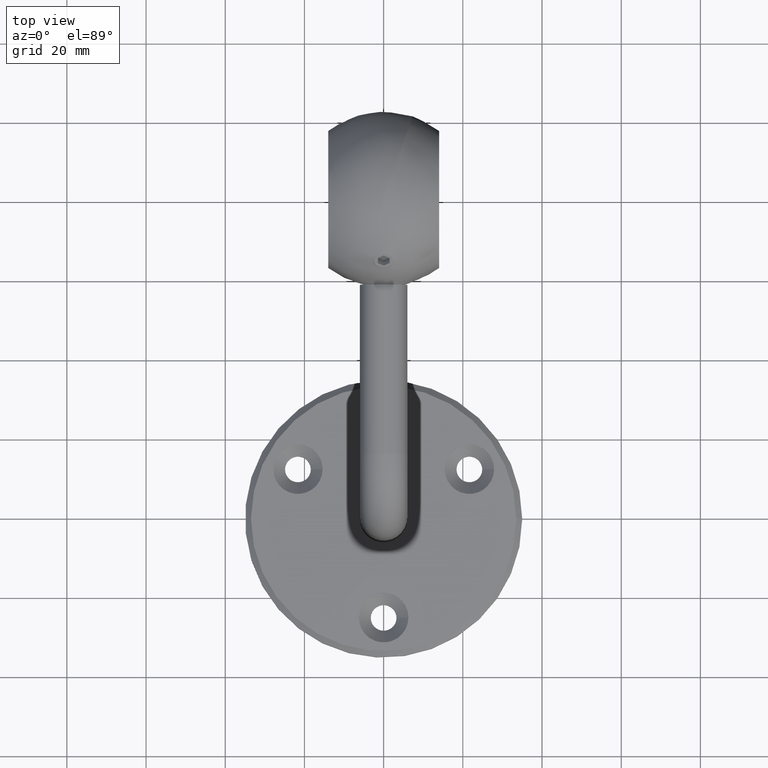
[diagram: clean part render]
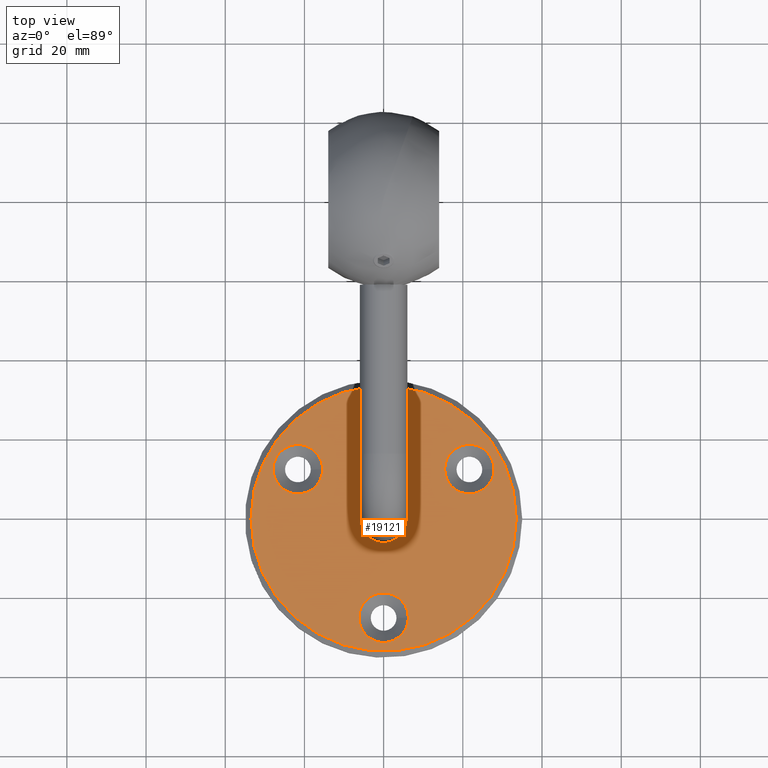
[diagram: same view with one face highlighted and labeled with its STEP entity id]
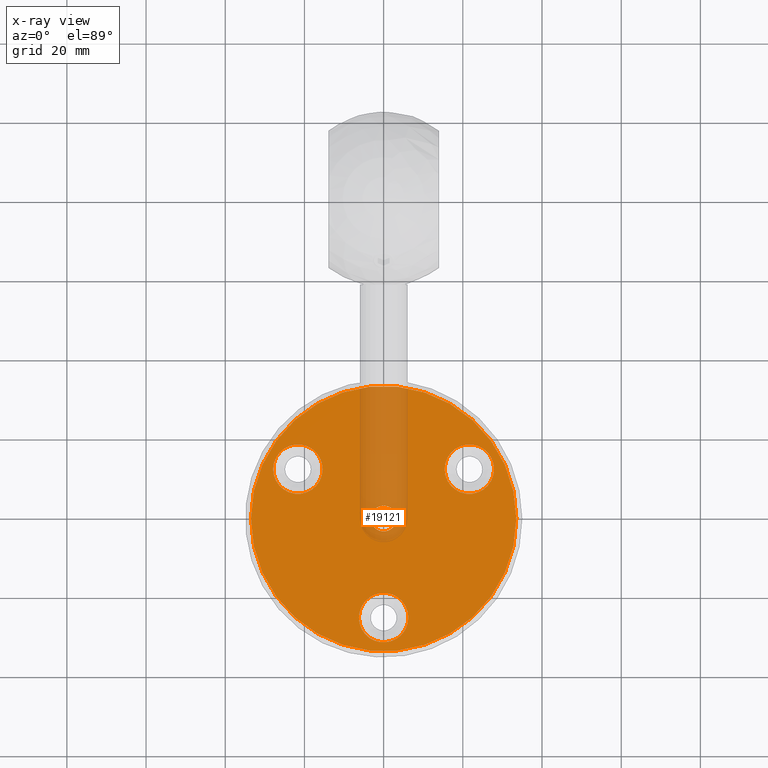
[diagram: x-ray of the same camera — body ghosted, the highlighted face saturated]
A machine part, top view. The second image highlights one B-rep face of the part: STEP entity #19121.
The next image is the same camera in x-ray: the body ghosted, the highlighted face saturated — about 13% of this face is hidden behind the body in this view.
In plain terms, the highlighted planar face has unit normal (0, 0, 1).
Its self-contained STEP definition (entity closure, byte-faithful):
#410 = EDGE_LOOP ( 'NONE', ( #28565 ) ) ;
#695 = EDGE_LOOP ( 'NONE', ( #10227 ) ) ;
#1420 = CIRCLE ( 'NONE', #21896, 33.50000000000002842 ) ;
#1687 = FACE_BOUND ( 'NONE', #21191, .T. ) ;
#2398 = VERTEX_POINT ( 'NONE', #18887 ) ;
#2486 = CARTESIAN_POINT ( 'NONE',  ( 6.249999999999998224, -25.00000000000000000, 6.000000000000001776 ) ) ;
#3160 = ORIENTED_EDGE ( 'NONE', *, *, #9644, .F. ) ;
#3481 = DIRECTION ( 'NONE',  ( 1.000000000000000000, 0.000000000000000000, -0.000000000000000000 ) ) ;
#4149 = CARTESIAN_POINT ( 'NONE',  ( 0.000000000000000000, 0.000000000000000000, 6.000000000000000000 ) ) ;
#4168 = ORIENTED_EDGE ( 'NONE', *, *, #11734, .F. ) ;
#4926 = DIRECTION ( 'NONE',  ( 1.000000000000000000, 0.000000000000000000, 0.000000000000000000 ) ) ;
#5719 = AXIS2_PLACEMENT_3D ( 'NONE', #6544, #22218, #17706 ) ;
#5932 = AXIS2_PLACEMENT_3D ( 'NONE', #26878, #13486, #18315 ) ;
#6018 = DIRECTION ( 'NONE',  ( 0.000000000000000000, 0.000000000000000000, 1.000000000000000000 ) ) ;
#6451 = CARTESIAN_POINT ( 'NONE',  ( 33.50000000000002842, 0.000000000000000000, 6.000000000000000000 ) ) ;
#6544 = CARTESIAN_POINT ( 'NONE',  ( 0.000000000000000000, 0.000000000000000000, 6.000000000000000000 ) ) ;
#6872 = DIRECTION ( 'NONE',  ( -0.000000000000000000, -0.000000000000000000, 1.000000000000000000 ) ) ;
#7276 = EDGE_LOOP ( 'NONE', ( #3160 ) ) ;
#7746 = DIRECTION ( 'NONE',  ( 0.000000000000000000, 0.000000000000000000, 1.000000000000000000 ) ) ;
#9644 = EDGE_CURVE ( 'NONE', #28316, #28316, #25003, .T. ) ;
#9960 = DIRECTION ( 'NONE',  ( 1.000000000000000000, 0.000000000000000000, 0.000000000000000000 ) ) ;
#10227 = ORIENTED_EDGE ( 'NONE', *, *, #15444, .T. ) ;
#10667 = AXIS2_PLACEMENT_3D ( 'NONE', #21012, #7746, #3481 ) ;
#11734 = EDGE_CURVE ( 'NONE', #28651, #28651, #15368, .T. ) ;
#12029 = FACE_BOUND ( 'NONE', #26059, .T. ) ;
#12106 = CARTESIAN_POINT ( 'NONE',  ( -15.40063509461091584, 12.50000000000010303, 6.000000000000001776 ) ) ;
#13486 = DIRECTION ( 'NONE',  ( -0.000000000000000000, -0.000000000000000000, 1.000000000000000000 ) ) ;
#13950 = CARTESIAN_POINT ( 'NONE',  ( -21.65063509461091584, 12.50000000000010303, 6.000000000000001776 ) ) ;
#14221 = CARTESIAN_POINT ( 'NONE',  ( 21.65063509461108282, 12.49999999999979927, 6.000000000000001776 ) ) ;
#15212 = DIRECTION ( 'NONE',  ( 1.000000000000000000, 0.000000000000000000, 0.000000000000000000 ) ) ;
#15368 = CIRCLE ( 'NONE', #5932, 6.249999999999998224 ) ;
#15444 = EDGE_CURVE ( 'NONE', #25855, #25855, #1420, .T. ) ;
#15511 = FACE_BOUND ( 'NONE', #410, .T. ) ;
#16353 = DIRECTION ( 'NONE',  ( -0.000000000000000000, -0.000000000000000000, 1.000000000000000000 ) ) ;
#16764 = PLANE ( 'NONE',  #10667 ) ;
#17468 = ORIENTED_EDGE ( 'NONE', *, *, #25834, .F. ) ;
#17706 = DIRECTION ( 'NONE',  ( 1.000000000000000000, 0.000000000000000000, 0.000000000000000000 ) ) ;
#18136 = CARTESIAN_POINT ( 'NONE',  ( 3.250000000000004441, 0.000000000000000000, 6.000000000000000000 ) ) ;
#18315 = DIRECTION ( 'NONE',  ( 1.000000000000000000, 0.000000000000000000, 0.000000000000000000 ) ) ;
#18790 = CIRCLE ( 'NONE', #24749, 6.249999999999998224 ) ;
#18887 = CARTESIAN_POINT ( 'NONE',  ( 27.90063509461108282, 12.49999999999979927, 6.000000000000001776 ) ) ;
#19121 = ADVANCED_FACE ( 'NONE', ( #22053, #21028, #15511, #12029, #1687 ), #16764, .T. ) ;
#21012 = CARTESIAN_POINT ( 'NONE',  ( 0.000000000000000000, 0.000000000000000000, 6.000000000000000000 ) ) ;
#21028 = FACE_BOUND ( 'NONE', #7276, .T. ) ;
#21191 = EDGE_LOOP ( 'NONE', ( #4168 ) ) ;
#21896 = AXIS2_PLACEMENT_3D ( 'NONE', #4149, #6018, #15212 ) ;
#22053 = FACE_OUTER_BOUND ( 'NONE', #695, .T. ) ;
#22218 = DIRECTION ( 'NONE',  ( 0.000000000000000000, 0.000000000000000000, 1.000000000000000000 ) ) ;
#23110 = VERTEX_POINT ( 'NONE', #12106 ) ;
#24093 = EDGE_CURVE ( 'NONE', #2398, #2398, #18790, .T. ) ;
#24749 = AXIS2_PLACEMENT_3D ( 'NONE', #14221, #16353, #9960 ) ;
#25003 = CIRCLE ( 'NONE', #5719, 3.250000000000004441 ) ;
#25834 = EDGE_CURVE ( 'NONE', #23110, #23110, #27001, .T. ) ;
#25855 = VERTEX_POINT ( 'NONE', #6451 ) ;
#26059 = EDGE_LOOP ( 'NONE', ( #17468 ) ) ;
#26878 = CARTESIAN_POINT ( 'NONE',  ( 0.000000000000000000, -25.00000000000000000, 6.000000000000001776 ) ) ;
#27001 = CIRCLE ( 'NONE', #28661, 6.249999999999998224 ) ;
#28316 = VERTEX_POINT ( 'NONE', #18136 ) ;
#28565 = ORIENTED_EDGE ( 'NONE', *, *, #24093, .F. ) ;
#28651 = VERTEX_POINT ( 'NONE', #2486 ) ;
#28661 = AXIS2_PLACEMENT_3D ( 'NONE', #13950, #6872, #4926 ) ;